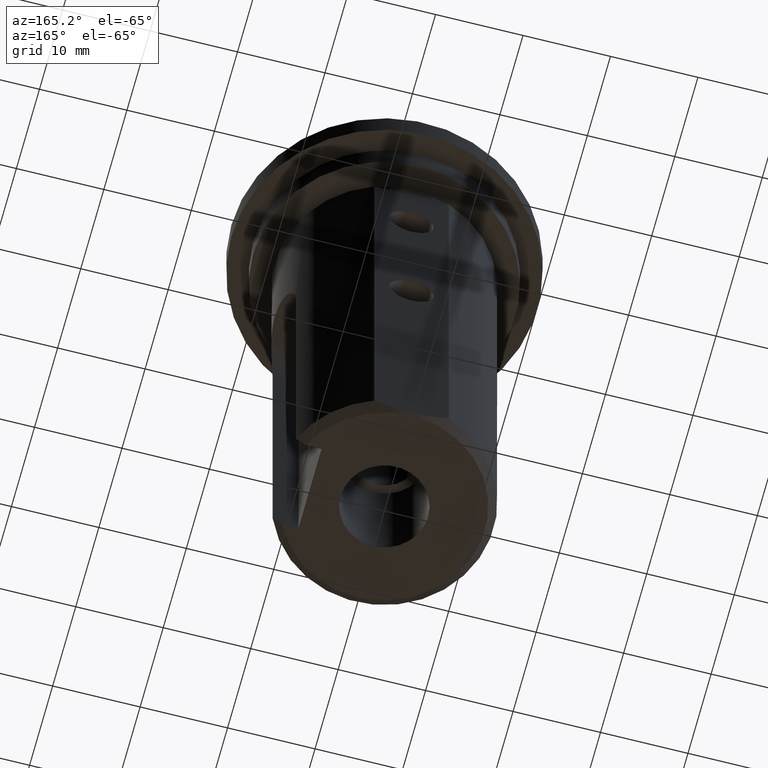
[diagram: clean part render]
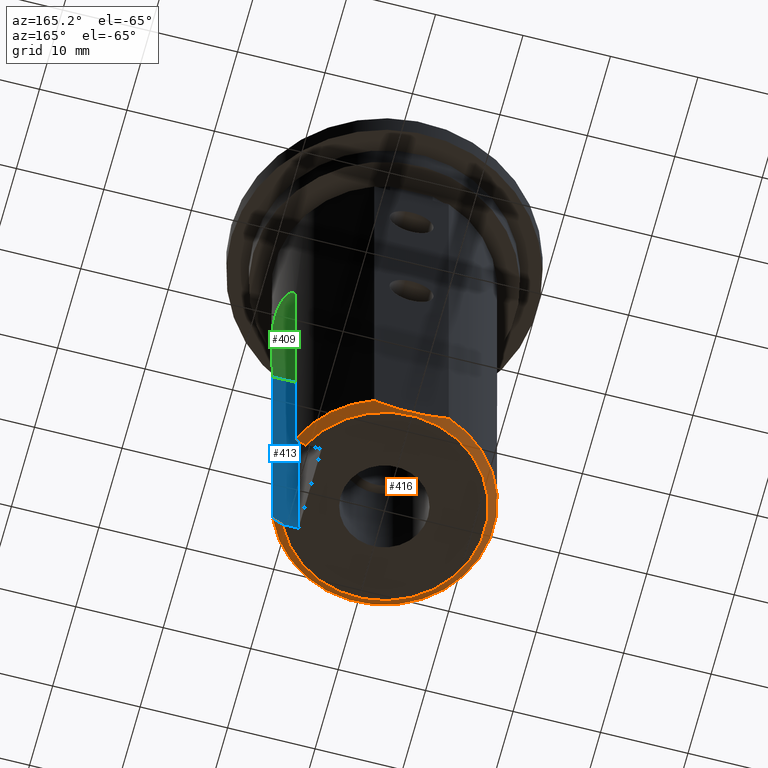
[diagram: same view with three faces highlighted in distinct colors, each labeled with its STEP entity id]
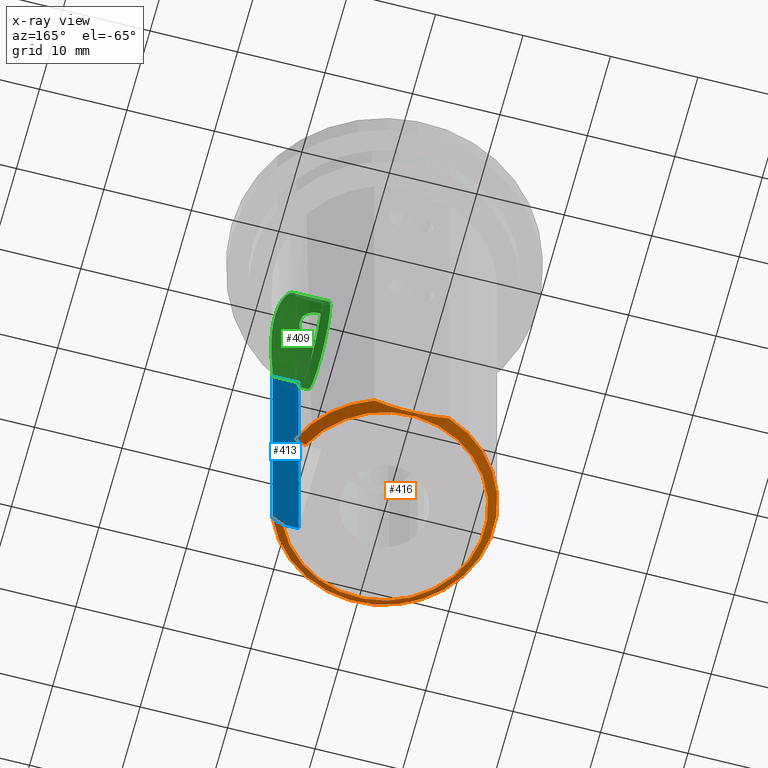
[diagram: x-ray of the same camera — body ghosted, the three highlighted faces saturated]
A machine part, auxiliary view with three faces highlighted in distinct colors.
The next image is the same camera in x-ray (body ghosted, the three faces saturated) — at least one of them is partly hidden behind the body in this view.
Their STEP definitions:

[orange] entity #416 — the highlighted conical surface has half-angle 45 deg.
#15=CONICAL_SURFACE('',#463,12.,0.785398163397454);
#26=(
BOUNDED_CURVE()
B_SPLINE_CURVE(2,(#690,#691,#692),.UNSPECIFIED.,.F.,.F.)
B_SPLINE_CURVE_WITH_KNOTS((3,3),(0.,0.148681884146899),.UNSPECIFIED.)
CURVE()
GEOMETRIC_REPRESENTATION_ITEM()
RATIONAL_B_SPLINE_CURVE((1.,1.00105254461095,1.))
REPRESENTATION_ITEM('')
);
#27=(
BOUNDED_CURVE()
B_SPLINE_CURVE(2,(#697,#698,#699),.UNSPECIFIED.,.F.,.F.)
B_SPLINE_CURVE_WITH_KNOTS((3,3),(0.,0.148681884146899),.UNSPECIFIED.)
CURVE()
GEOMETRIC_REPRESENTATION_ITEM()
RATIONAL_B_SPLINE_CURVE((1.,1.00105254460838,1.))
REPRESENTATION_ITEM('')
);
#28=(
BOUNDED_CURVE()
B_SPLINE_CURVE(2,(#716,#717,#718),.UNSPECIFIED.,.F.,.F.)
B_SPLINE_CURVE_WITH_KNOTS((3,3),(0.,0.86602540378443),.UNSPECIFIED.)
CURVE()
GEOMETRIC_REPRESENTATION_ITEM()
RATIONAL_B_SPLINE_CURVE((1.,1.06382978723403,1.))
REPRESENTATION_ITEM('')
);
#50=FACE_OUTER_BOUND('',#74,.T.);
#74=EDGE_LOOP('',(#333,#334,#335,#336,#337,#338));
#164=CIRCLE('',#457,12.5);
#166=CIRCLE('',#459,12.5);
#167=CIRCLE('',#461,11.5);
#194=VERTEX_POINT('',#686);
#195=VERTEX_POINT('',#688);
#196=VERTEX_POINT('',#694);
#197=VERTEX_POINT('',#696);
#198=VERTEX_POINT('',#702);
#201=VERTEX_POINT('',#708);
#241=EDGE_CURVE('',#194,#195,#26,.T.);
#243=EDGE_CURVE('',#197,#196,#27,.T.);
#245=EDGE_CURVE('',#198,#194,#164,.T.);
#249=EDGE_CURVE('',#196,#201,#166,.T.);
#250=EDGE_CURVE('',#197,#195,#167,.T.);
#252=EDGE_CURVE('',#201,#198,#28,.T.);
#333=ORIENTED_EDGE('',*,*,#241,.T.);
#334=ORIENTED_EDGE('',*,*,#250,.F.);
#335=ORIENTED_EDGE('',*,*,#243,.T.);
#336=ORIENTED_EDGE('',*,*,#249,.T.);
#337=ORIENTED_EDGE('',*,*,#252,.T.);
#338=ORIENTED_EDGE('',*,*,#245,.T.);
#416=ADVANCED_FACE('',(#50),#15,.T.);
#457=AXIS2_PLACEMENT_3D('',#703,#530,#531);
#459=AXIS2_PLACEMENT_3D('',#710,#536,#537);
#461=AXIS2_PLACEMENT_3D('',#712,#540,#541);
#463=AXIS2_PLACEMENT_3D('',#715,#544,#545);
#530=DIRECTION('center_axis',(0.,0.,-1.));
#531=DIRECTION('ref_axis',(1.,0.,0.));
#536=DIRECTION('center_axis',(0.,0.,-1.));
#537=DIRECTION('ref_axis',(1.,0.,0.));
#540=DIRECTION('center_axis',(0.,0.,-1.));
#541=DIRECTION('ref_axis',(1.,0.,0.));
#544=DIRECTION('center_axis',(0.,0.,1.));
#545=DIRECTION('ref_axis',(-1.,0.,0.));
#686=CARTESIAN_POINT('',(11.4564392373896,5.,-63.));
#688=CARTESIAN_POINT('',(10.356157588604,5.,-64.));
#690=CARTESIAN_POINT('Ctrl Pts',(11.4564392373896,5.,-63.));
#691=CARTESIAN_POINT('Ctrl Pts',(10.883375878648,5.,-63.5252212438878));
#692=CARTESIAN_POINT('Ctrl Pts',(10.356157588604,5.,-64.));
#694=CARTESIAN_POINT('',(11.4564392373896,-5.,-63.));
#696=CARTESIAN_POINT('',(10.356157588604,-5.,-64.));
#697=CARTESIAN_POINT('Ctrl Pts',(10.356157588604,-5.,-64.));
#698=CARTESIAN_POINT('Ctrl Pts',(10.8833758786478,-5.,-63.525221243888));
#699=CARTESIAN_POINT('Ctrl Pts',(11.4564392373896,-5.,-63.));
#702=CARTESIAN_POINT('',(4.26468052730796,11.75,-63.));
#703=CARTESIAN_POINT('Origin',(0.,0.,-63.));
#708=CARTESIAN_POINT('',(-4.26468052730796,11.75,-63.));
#710=CARTESIAN_POINT('Origin',(0.,0.,-63.));
#712=CARTESIAN_POINT('Origin',(0.,0.,-64.));
#715=CARTESIAN_POINT('Origin',(0.,0.,-63.5));
#716=CARTESIAN_POINT('Ctrl Pts',(-4.26468052730796,11.75,-63.));
#717=CARTESIAN_POINT('Ctrl Pts',(0.,11.75,-64.455));
#718=CARTESIAN_POINT('Ctrl Pts',(4.26468052730796,11.75,-63.));

[blue] entity #413 — the highlighted planar face has unit normal (0, -1, 0).
#27=(
BOUNDED_CURVE()
B_SPLINE_CURVE(2,(#697,#698,#699),.UNSPECIFIED.,.F.,.F.)
B_SPLINE_CURVE_WITH_KNOTS((3,3),(0.,0.148681884146899),.UNSPECIFIED.)
CURVE()
GEOMETRIC_REPRESENTATION_ITEM()
RATIONAL_B_SPLINE_CURVE((1.,1.00105254460838,1.))
REPRESENTATION_ITEM('')
);
#33=PLANE('',#455);
#47=FACE_OUTER_BOUND('',#70,.T.);
#70=EDGE_LOOP('',(#314,#315,#316,#317,#318));
#110=LINE('',#674,#137);
#112=LINE('',#681,#139);
#117=LINE('',#695,#144);
#118=LINE('',#700,#145);
#137=VECTOR('',#509,10.);
#139=VECTOR('',#517,10.);
#144=VECTOR('',#526,10.);
#145=VECTOR('',#527,10.);
#189=VERTEX_POINT('',#662);
#190=VERTEX_POINT('',#673);
#192=VERTEX_POINT('',#680);
#196=VERTEX_POINT('',#694);
#197=VERTEX_POINT('',#696);
#233=EDGE_CURVE('',#189,#190,#110,.T.);
#236=EDGE_CURVE('',#192,#190,#112,.T.);
#242=EDGE_CURVE('',#196,#189,#117,.T.);
#243=EDGE_CURVE('',#197,#196,#27,.T.);
#244=EDGE_CURVE('',#192,#197,#118,.T.);
#314=ORIENTED_EDGE('',*,*,#242,.F.);
#315=ORIENTED_EDGE('',*,*,#243,.F.);
#316=ORIENTED_EDGE('',*,*,#244,.F.);
#317=ORIENTED_EDGE('',*,*,#236,.T.);
#318=ORIENTED_EDGE('',*,*,#233,.F.);
#413=ADVANCED_FACE('',(#47),#33,.F.);
#455=AXIS2_PLACEMENT_3D('',#693,#524,#525);
#509=DIRECTION('',(-1.,0.,0.));
#517=DIRECTION('',(0.,0.,1.));
#524=DIRECTION('center_axis',(0.,-1.,0.));
#525=DIRECTION('ref_axis',(0.,0.,1.));
#526=DIRECTION('',(0.,0.,1.));
#527=DIRECTION('',(1.,0.,0.));
#662=CARTESIAN_POINT('',(11.4564392373896,-5.,-26.));
#673=CARTESIAN_POINT('',(8.49999999999999,-5.,-26.));
#674=CARTESIAN_POINT('',(12.5,-5.,-26.));
#680=CARTESIAN_POINT('',(8.49999999999999,-5.,-64.));
#681=CARTESIAN_POINT('',(8.49999999999999,-5.,-26.));
#693=CARTESIAN_POINT('Origin',(12.5,-5.,-64.));
#694=CARTESIAN_POINT('',(11.4564392373896,-5.,-63.));
#695=CARTESIAN_POINT('',(11.4564392373896,-5.,-35.));
#696=CARTESIAN_POINT('',(10.356157588604,-5.,-64.));
#697=CARTESIAN_POINT('Ctrl Pts',(10.356157588604,-5.,-64.));
#698=CARTESIAN_POINT('Ctrl Pts',(10.8833758786478,-5.,-63.525221243888));
#699=CARTESIAN_POINT('Ctrl Pts',(11.4564392373896,-5.,-63.));
#700=CARTESIAN_POINT('',(3.74999999999988,-5.,-64.));

[green] entity #409 — the highlighted cylindrical surface (bore or boss wall) has radius 5 mm, axis along (-1, 0, 0).
#43=FACE_OUTER_BOUND('',#66,.T.);
#66=EDGE_LOOP('',(#291,#292,#293,#294,#295,#296,#297,#298,#299,#300));
#97=B_SPLINE_CURVE_WITH_KNOTS('',3,(#616,#617,#618,#619,#620,#621,#622,
#623,#624,#625,#626,#627),.UNSPECIFIED.,.F.,.F.,(4,2,2,2,2,4),(0.457106640739436,
0.506260606866501,0.569557836584048,0.632855066301595,0.696122988300673,
0.759390910299751),.UNSPECIFIED.);
#98=B_SPLINE_CURVE_WITH_KNOTS('',3,(#629,#630,#631,#632,#633,#634,#635,
#636,#637,#638,#639,#640,#641),.UNSPECIFIED.,.F.,.F.,(4,2,2,2,3,4),(0.759390910299751,
0.822658832298829,0.885926754297907,0.949223984015455,1.012521213733,1.06167517986007),
 .UNSPECIFIED.);
#99=B_SPLINE_CURVE_WITH_KNOTS('',3,(#650,#651,#652,#653,#654,#655,#656,
#657,#658,#659),.UNSPECIFIED.,.F.,.F.,(4,2,2,2,4),(-0.762729335551936,-0.572143500402293,
-0.381557665252652,-0.190778832626326,0.),.UNSPECIFIED.);
#100=B_SPLINE_CURVE_WITH_KNOTS('',3,(#663,#664,#665,#666,#667,#668,#669,
#670,#671,#672),.UNSPECIFIED.,.F.,.F.,(4,2,2,2,4),(-1.52545867110387,-1.33467983847755,
-1.14390100585122,-0.953315170701578,-0.762729335551936),.UNSPECIFIED.);
#109=LINE('',#660,#136);
#110=LINE('',#674,#137);
#111=LINE('',#677,#138);
#136=VECTOR('',#506,5.);
#137=VECTOR('',#509,10.);
#138=VECTOR('',#512,10.);
#162=CIRCLE('',#450,5.);
#163=CIRCLE('',#451,5.);
#183=VERTEX_POINT('',#613);
#184=VERTEX_POINT('',#615);
#185=VERTEX_POINT('',#628);
#187=VERTEX_POINT('',#648);
#188=VERTEX_POINT('',#649);
#189=VERTEX_POINT('',#662);
#190=VERTEX_POINT('',#673);
#191=VERTEX_POINT('',#675);
#224=EDGE_CURVE('',#184,#183,#97,.F.);
#225=EDGE_CURVE('',#185,#184,#98,.F.);
#229=EDGE_CURVE('',#187,#188,#99,.T.);
#230=EDGE_CURVE('',#187,#184,#109,.T.);
#231=EDGE_CURVE('',#183,#185,#162,.T.);
#232=EDGE_CURVE('',#189,#187,#100,.T.);
#233=EDGE_CURVE('',#189,#190,#110,.T.);
#234=EDGE_CURVE('',#191,#190,#163,.T.);
#235=EDGE_CURVE('',#188,#191,#111,.T.);
#291=ORIENTED_EDGE('',*,*,#229,.F.);
#292=ORIENTED_EDGE('',*,*,#230,.T.);
#293=ORIENTED_EDGE('',*,*,#224,.T.);
#294=ORIENTED_EDGE('',*,*,#231,.T.);
#295=ORIENTED_EDGE('',*,*,#225,.T.);
#296=ORIENTED_EDGE('',*,*,#230,.F.);
#297=ORIENTED_EDGE('',*,*,#232,.F.);
#298=ORIENTED_EDGE('',*,*,#233,.T.);
#299=ORIENTED_EDGE('',*,*,#234,.F.);
#300=ORIENTED_EDGE('',*,*,#235,.F.);
#398=CYLINDRICAL_SURFACE('',#449,5.);
#409=ADVANCED_FACE('',(#43),#398,.F.);
#449=AXIS2_PLACEMENT_3D('',#647,#504,#505);
#450=AXIS2_PLACEMENT_3D('',#661,#507,#508);
#451=AXIS2_PLACEMENT_3D('',#676,#510,#511);
#504=DIRECTION('center_axis',(-1.,0.,0.));
#505=DIRECTION('ref_axis',(0.,0.,-1.));
#506=DIRECTION('',(-1.,0.,0.));
#507=DIRECTION('center_axis',(-1.,0.,0.));
#508=DIRECTION('ref_axis',(0.,0.,-1.));
#509=DIRECTION('',(-1.,0.,0.));
#510=DIRECTION('center_axis',(-1.,0.,0.));
#511=DIRECTION('ref_axis',(0.,0.,-1.));
#512=DIRECTION('',(-1.,0.,0.));
#613=CARTESIAN_POINT('',(7.5,1.58919976113473,-21.2592781014692));
#615=CARTESIAN_POINT('',(9.66600011920929,5.49022986423591E-16,-21.));
#616=CARTESIAN_POINT('Ctrl Pts',(7.5,1.58919976113473,-21.2592781014692));
#617=CARTESIAN_POINT('Ctrl Pts',(7.66435709595379,1.64091042053674,-21.2766127119629));
#618=CARTESIAN_POINT('Ctrl Pts',(7.83615356545241,1.666,-21.2857191428597));
#619=CARTESIAN_POINT('Ctrl Pts',(8.21099088493445,1.666,-21.2857191428597));
#620=CARTESIAN_POINT('Ctrl Pts',(8.43482728452895,1.6235014968162,-21.2700666131484));
#621=CARTESIAN_POINT('Ctrl Pts',(8.84474911248202,1.45300770264397,-21.2149404207144));
#622=CARTESIAN_POINT('Ctrl Pts',(9.03099201028833,1.32508790383454,-21.1764083885394));
#623=CARTESIAN_POINT('Ctrl Pts',(9.32501993725885,1.03105997686402,-21.1051263432617));
#624=CARTESIAN_POINT('Ctrl Pts',(9.45299215338909,0.844789958715575,-21.0675503946981));
#625=CARTESIAN_POINT('Ctrl Pts',(9.62352503695162,0.434767560325978,-21.0146508295925));
#626=CARTESIAN_POINT('Ctrl Pts',(9.66600011920929,0.21089307333026,-21.));
#627=CARTESIAN_POINT('Ctrl Pts',(9.66600011920929,5.55111512312578E-16,
-21.));
#628=CARTESIAN_POINT('',(7.5,-1.58919976113473,-21.2592781014692));
#629=CARTESIAN_POINT('Ctrl Pts',(9.66600011920929,4.85722573273506E-16,
-21.));
#630=CARTESIAN_POINT('Ctrl Pts',(9.66600011920929,-0.210893073330259,-21.));
#631=CARTESIAN_POINT('Ctrl Pts',(9.62352503695162,-0.434767560325977,-21.0146508295925));
#632=CARTESIAN_POINT('Ctrl Pts',(9.45299215338909,-0.844789958715575,-21.0675503946981));
#633=CARTESIAN_POINT('Ctrl Pts',(9.32501993725885,-1.03105997686402,-21.1051263432617));
#634=CARTESIAN_POINT('Ctrl Pts',(9.03099201028833,-1.32508790383454,-21.1764083885394));
#635=CARTESIAN_POINT('Ctrl Pts',(8.84474911248202,-1.45300770264396,-21.2149404207144));
#636=CARTESIAN_POINT('Ctrl Pts',(8.43482728452895,-1.6235014968162,-21.2700666131484));
#637=CARTESIAN_POINT('Ctrl Pts',(8.21099088493445,-1.666,-21.2857191428597));
#638=CARTESIAN_POINT('Ctrl Pts',(8.00000011920929,-1.666,-21.2857191428597));
#639=CARTESIAN_POINT('Ctrl Pts',(7.83615356545241,-1.666,-21.2857191428597));
#640=CARTESIAN_POINT('Ctrl Pts',(7.66435709595379,-1.64091042053674,-21.2766127119629));
#641=CARTESIAN_POINT('Ctrl Pts',(7.49999999999999,-1.58919976113473,-21.2592781014692));
#647=CARTESIAN_POINT('Origin',(12.5,0.,-26.));
#648=CARTESIAN_POINT('',(12.5,0.,-21.));
#649=CARTESIAN_POINT('',(11.4564392373896,5.,-26.));
#650=CARTESIAN_POINT('Ctrl Pts',(12.5,-8.32667268468867E-16,-21.));
#651=CARTESIAN_POINT('Ctrl Pts',(12.5,0.635286117165474,-21.));
#652=CARTESIAN_POINT('Ctrl Pts',(12.4469252213519,1.30822076923524,-21.128403580862));
#653=CARTESIAN_POINT('Ctrl Pts',(12.2554019139791,2.53821057671279,-21.6409428181784));
#654=CARTESIAN_POINT('Ctrl Pts',(12.1192560439259,3.0957770042138,-22.0247091923483));
#655=CARTESIAN_POINT('Ctrl Pts',(11.8597702544878,3.97573612916426,-22.9046683172988));
#656=CARTESIAN_POINT('Ctrl Pts',(11.7185171216983,4.35916477785056,-23.462066188643));
#657=CARTESIAN_POINT('Ctrl Pts',(11.5149895844636,4.87144550180163,-24.6913985047204));
#658=CARTESIAN_POINT('Ctrl Pts',(11.4564392373896,5.,-25.3640705579122));
#659=CARTESIAN_POINT('Ctrl Pts',(11.4564392373896,5.,-26.));
#660=CARTESIAN_POINT('',(12.5,6.12323399573677E-16,-21.));
#661=CARTESIAN_POINT('Origin',(7.5,0.,-26.));
#662=CARTESIAN_POINT('',(11.4564392373896,-5.,-26.));
#663=CARTESIAN_POINT('Ctrl Pts',(11.4564392373896,-5.,-26.));
#664=CARTESIAN_POINT('Ctrl Pts',(11.4564392373896,-5.,-25.3640705579122));
#665=CARTESIAN_POINT('Ctrl Pts',(11.5149895844636,-4.87144550180163,-24.6913985047204));
#666=CARTESIAN_POINT('Ctrl Pts',(11.7185171216983,-4.35916477785056,-23.462066188643));
#667=CARTESIAN_POINT('Ctrl Pts',(11.8597702544878,-3.97573612916426,-22.9046683172988));
#668=CARTESIAN_POINT('Ctrl Pts',(12.1192560439259,-3.0957770042138,-22.0247091923483));
#669=CARTESIAN_POINT('Ctrl Pts',(12.2554019139791,-2.53821057671278,-21.6409428181784));
#670=CARTESIAN_POINT('Ctrl Pts',(12.4469252213519,-1.30822076923523,-21.128403580862));
#671=CARTESIAN_POINT('Ctrl Pts',(12.5,-0.635286117165473,-21.));
#672=CARTESIAN_POINT('Ctrl Pts',(12.5,-4.16333634234434E-16,-21.));
#673=CARTESIAN_POINT('',(8.49999999999999,-5.,-26.));
#674=CARTESIAN_POINT('',(12.5,-5.,-26.));
#675=CARTESIAN_POINT('',(8.49999999999999,5.,-26.));
#676=CARTESIAN_POINT('Origin',(8.49999999999999,0.,-26.));
#677=CARTESIAN_POINT('',(12.5,5.,-26.));